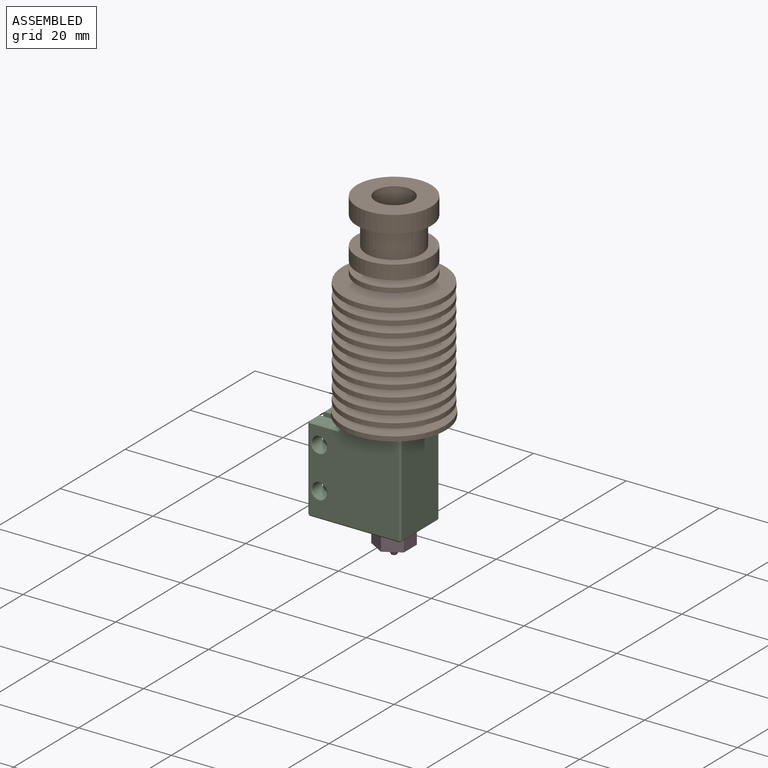
[diagram: assembled view]
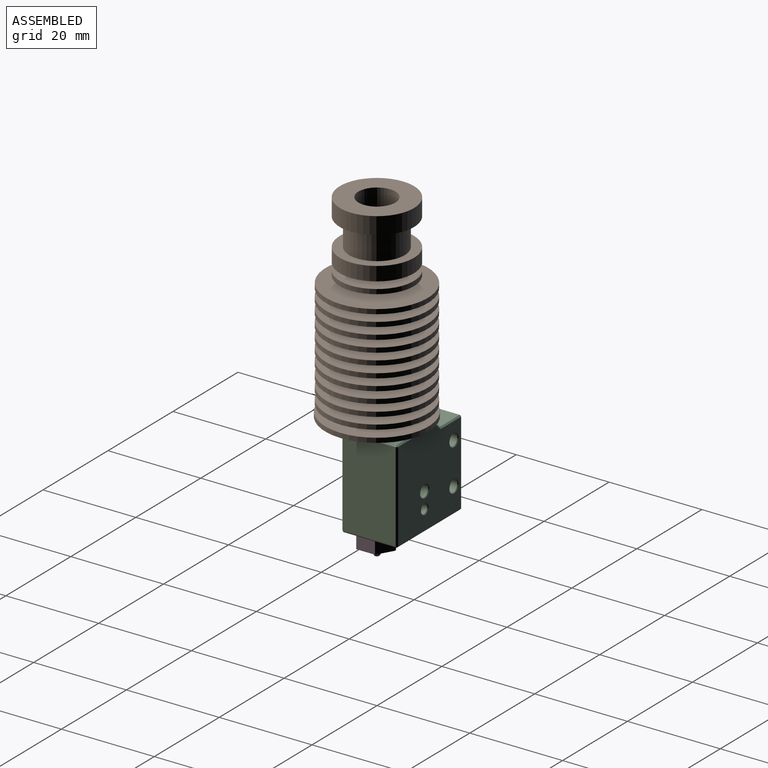
[diagram: assembled view, second angle]
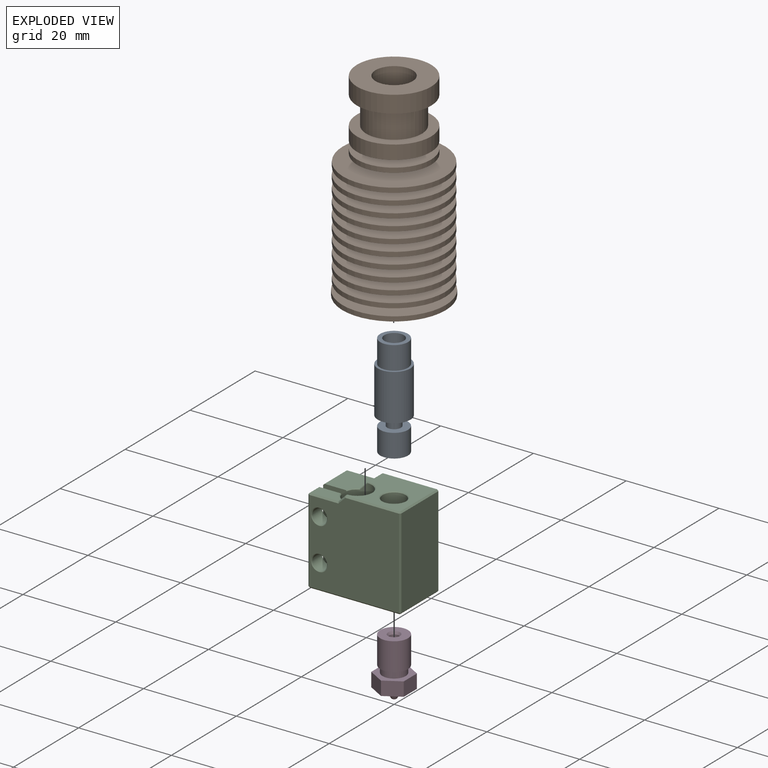
[diagram: exploded view]
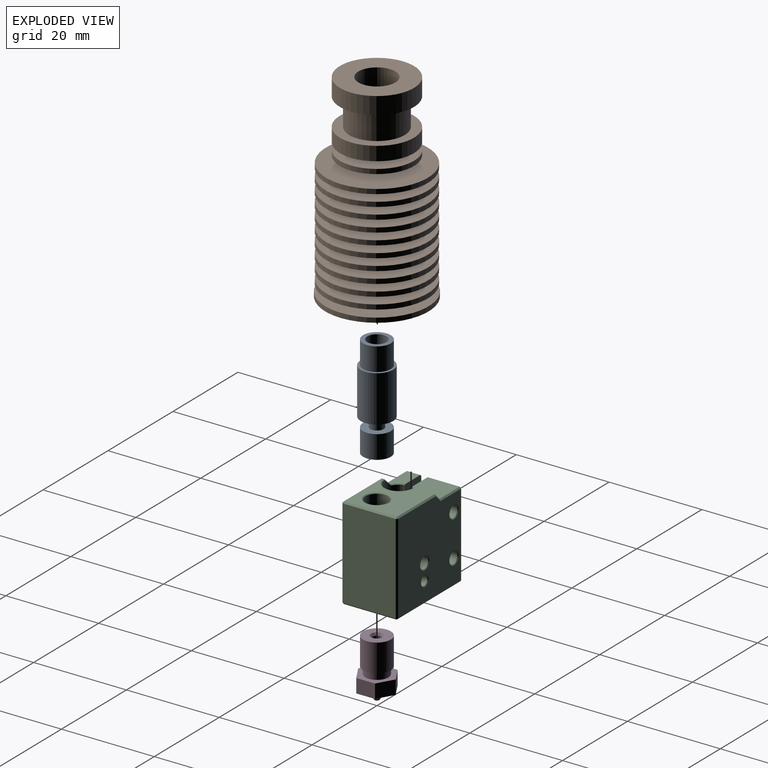
[diagram: exploded view, second angle]
ASSEMBLY  parts=4 mates=3
PART A: 12 faces, bbox 7x7x22.1 mm
  f0: plane 6x6mm, normal (0,0,1), area 14.4mm2, adj f1,f11
  f1: cylinder r=3mm len=6mm, axis (0,0,-1), area 94.2mm2, adj f0,f2
  f2: plane 7x7mm, normal (0,0,1), area 10.2mm2, adj f1,f3
  f3: cylinder r=3.5mm len=10mm, axis (0,0,-1), area 219.9mm2, adj f2,f4
  f4: plane 7x7mm, normal (0,0,-1), area 31.6mm2, adj f3,f5
  f5: cylinder r=1.47mm len=2.95mm, axis (0,0,-1), area 19.5mm2, adj f4,f6
  f6: plane 6x6mm, normal (0,0,1), area 21.4mm2, adj f5,f7
  f7: cylinder r=3mm len=6mm, axis (0,0,-1), area 94.2mm2, adj f6,f8
  f8: plane 6x6mm, normal (0,0,-1), area 25.1mm2, adj f7,f9
  f9: cylinder r=1mm len=17.1mm, axis (0,0,-1), area 107.4mm2, adj f8,f10
  f10: plane 4.2x4.2mm, normal (0,0,1), area 10.7mm2, adj f9,f11
  f11: cylinder r=2.1mm len=5mm, axis (0,0,-1), area 66mm2, adj f0,f10
PART B: 60 faces, bbox 22.3x22.3x42.7 mm
  f0: cylinder r=6.25mm len=12.5mm, axis (0,0,-1), area 58.9mm2, adj f1,f59
  f1: plane 22x22mm, normal (0,0,1), area 257.4mm2, adj f0,f2
  f2: cylinder r=11mm len=22mm, axis (0,0,-1), area 69.1mm2, adj f1,f3
  f3: plane 22x22mm, normal (0,0,-1), area 247.4mm2, adj f2,f4
  f4: cylinder r=6.5mm len=13mm, axis (0,0,-1), area 61.3mm2, adj f3,f5
  f5: plane 22x22mm, normal (0,0,1), area 247.4mm2, adj f4,f6
  f6: cylinder r=11mm len=22mm, axis (0,0,-1), area 69.1mm2, adj f5,f7
  f7: plane 22x22mm, normal (0,0,-1), area 237mm2, adj f6,f8
  f8: cylinder r=6.75mm len=13.5mm, axis (0,0,-1), area 63.6mm2, adj f7,f9
  f9: plane 22x22mm, normal (0,0,1), area 237mm2, adj f8,f10
  f10: cylinder r=11mm len=22mm, axis (0,0,-1), area 69.1mm2, adj f9,f11
  f11: plane 22x22mm, normal (0,0,-1), area 226.2mm2, adj f10,f12
  f12: cylinder r=7mm len=14mm, axis (0,0,-1), area 66mm2, adj f11,f13
  f13: plane 22.3x22.3mm, normal (0,0,1), area 236.6mm2, adj f12,f14
  f14: cylinder r=11.15mm len=22.3mm, axis (0,0,-1), area 70.1mm2, adj f13,f15
  f15: plane 22.3x22.3mm, normal (0,0,-1), area 362.3mm2, adj f14,f16
  f16: cylinder r=3mm len=15.1mm, axis (0,0,-1), area 284.6mm2, adj f15,f17
  f17: plane 6x6mm, normal (0,0,-1), area 14.4mm2, adj f16,f18
  f18: cylinder r=2.1mm len=21.1mm, axis (0,0,-1), area 278.4mm2, adj f17,f19
  f19: plane 8x8mm, normal (0,0,1), area 36.4mm2, adj f18,f20
  f20: cylinder r=4mm len=8mm, axis (0,0,-1), area 163.4mm2, adj f19,f21
  f21: plane 16x16mm, normal (0,0,1), area 150.8mm2, adj f20,f22
  f22: cylinder r=8mm len=16mm, axis (0,0,-1), area 186mm2, adj f21,f23
  f23: plane 16x16mm, normal (0,0,-1), area 88mm2, adj f22,f24
  f24: cylinder r=6mm len=12mm, axis (0,0,-1), area 226.2mm2, adj f23,f25
  f25: plane 16x16mm, normal (0,0,1), area 88mm2, adj f24,f26
  f26: cylinder r=8mm len=16mm, axis (0,0,-1), area 150.8mm2, adj f25,f27
  f27: plane 16x16mm, normal (0,0,-1), area 137.4mm2, adj f26,f28
  f28: cylinder r=4.5mm len=9mm, axis (0,0,-1), area 42.4mm2, adj f27,f29
  f29: plane 16x16mm, normal (0,0,1), area 137.4mm2, adj f28,f30
  f30: cylinder r=8mm len=16mm, axis (0,0,-1), area 50.3mm2, adj f29,f31
  f31: plane 16x16mm, normal (0,0,-1), area 137.4mm2, adj f30,f32
  f32: cylinder r=4.5mm len=9mm, axis (0,0,-1), area 42.4mm2, adj f31,f33
  f33: plane 22x22mm, normal (0,0,1), area 316.5mm2, adj f32,f34
  f34: cylinder r=11mm len=22mm, axis (0,0,-1), area 69.1mm2, adj f33,f35
  f35: plane 22x22mm, normal (0,0,-1), area 309.3mm2, adj f34,f36
  f36: cylinder r=4.75mm len=9.5mm, axis (0,0,-1), area 44.8mm2, adj f35,f37
  f37: plane 22x22mm, normal (0,0,1), area 309.3mm2, adj f36,f38
  f38: cylinder r=11mm len=22mm, axis (0,0,-1), area 69.1mm2, adj f37,f39
  f39: plane 22x22mm, normal (0,0,-1), area 301.6mm2, adj f38,f40
  f40: cylinder r=5mm len=10mm, axis (0,0,-1), area 47.1mm2, adj f39,f41
  f41: plane 22x22mm, normal (0,0,1), area 301.6mm2, adj f40,f42
  f42: cylinder r=11mm len=22mm, axis (0,0,-1), area 69.1mm2, adj f41,f43
  f43: plane 22x22mm, normal (0,0,-1), area 293.5mm2, adj f42,f44
  f44: cylinder r=5.25mm len=10.5mm, axis (0,0,-1), area 49.5mm2, adj f43,f45
  f45: plane 22x22mm, normal (0,0,1), area 293.5mm2, adj f44,f46
  f46: cylinder r=11mm len=22mm, axis (0,0,-1), area 69.1mm2, adj f45,f47
  f47: plane 22x22mm, normal (0,0,-1), area 285.1mm2, adj f46,f48
  f48: cylinder r=5.5mm len=11mm, axis (0,0,-1), area 51.8mm2, adj f47,f49
  f49: plane 22x22mm, normal (0,0,1), area 285.1mm2, adj f48,f50
  f50: cylinder r=11mm len=22mm, axis (0,0,-1), area 69.1mm2, adj f49,f51
  f51: plane 22x22mm, normal (0,0,-1), area 276.3mm2, adj f50,f52
  f52: cylinder r=5.75mm len=11.5mm, axis (0,0,-1), area 54.2mm2, adj f51,f53
  f53: plane 22x22mm, normal (0,0,1), area 276.3mm2, adj f52,f54
  f54: cylinder r=11mm len=22mm, axis (0,0,-1), area 69.1mm2, adj f53,f55
  f55: plane 22x22mm, normal (0,0,-1), area 267mm2, adj f54,f56
  f56: cylinder r=6mm len=12mm, axis (0,0,-1), area 56.5mm2, adj f55,f57
  f57: plane 22x22mm, normal (0,0,1), area 267mm2, adj f56,f58
  f58: cylinder r=11mm len=22mm, axis (0,0,-1), area 69.1mm2, adj f57,f59
  f59: plane 22x22mm, normal (0,0,-1), area 257.4mm2, adj f0,f58
PART C: 65 faces, bbox 20x12x20.1 mm
  f0: plane 17.9x6.9mm, normal (-1,0,0), area 123.5mm2, adj f14,f44,f50,f51
  f1: plane 6.9x6.2mm, normal (0,0,1), area 40.7mm2, adj f2,f14,f27,f50,f59
  f2: plane 4.88x1.51mm, normal (-0.71,0,0.71), area 9.9mm2, adj f1,f6,f27,f28,f29,f62
  f3: plane 17.9x2.9mm, normal (-1,0,0), area 51.9mm2, adj f13,f39,f40,f41
  f4: plane 6.2x2.9mm, normal (0,0,1), area 15.9mm2, adj f5,f13,f31,f41,f46
  f5: plane 1.51x1.51mm, normal (-0.71,0,0.71), area 1.4mm2, adj f4,f6,f29,f30,f31,f49
  f6: plane 11.7x11.4mm, normal (0,0,1), area 95.6mm2, adj f2,f5,f29,f34,f55,f61,f64
  f7: plane 19.4x11.4mm, normal (1,0,0), area 221.2mm2, adj f53,f54,f60,f61
  f8: plane 19.4x11.4mm, normal (0,0,-1), area 160.1mm2, adj f13,f14,f32,f33,f39,f44,f45,f52
  f9: plane 19.4x19.4mm, normal (0,1,0), area 343.1mm2, adj f35,f36,f37,f38,f51,f52,f59,f60
  f10: plane 19.4x19.4mm, normal (0,-1,0), area 346.5mm2, adj f25,f26,f40,f45,f46,f49,f54,f55
  f11: cylinder r=2.48mm len=19.7mm, axis (0,0,-1), area 306.4mm2, adj f33,f34
  f12: cylinder r=3.05mm len=19.7mm, axis (0,0,-1), area 335.9mm2, adj f13,f14,f27,f28,f29,f30,f31,f32
  f13: plane 18.5x5.06mm, normal (0,1,0), area 77.4mm2, adj f3,f4,f8,f12,f17,f18,f31,f32
  f14: plane 18.5x5.06mm, normal (0,-1,0), area 83.6mm2, adj f0,f1,f8,f12,f15,f16,f27,f32
  f15: cylinder r=1.25mm len=7.05mm, axis (0,1,0), area 55.4mm2, adj f14,f37
  f16: cylinder r=1.25mm len=7.05mm, axis (0,1,0), area 55.4mm2, adj f14,f38
  f17: cylinder r=1.6mm len=3.2mm, axis (0,-1,0), area 30.7mm2, adj f13,f26
  f18: cylinder r=1.6mm len=3.2mm, axis (0,-1,0), area 30.7mm2, adj f13,f25
  f19: cylinder r=1mm len=2mm, axis (0,1,0), area 11.6mm2, adj f20,f35
  f20: cone r=1mm half-angle=60deg, axis (0,1,0), area 1.4mm2, adj f19,f22
  f21: cone r=0.78mm half-angle=60deg, axis (0,1,0), area 2.2mm2, adj f22
  f22: cylinder r=0.78mm len=2.27mm, axis (0,1,0), area 11.1mm2, adj f20,f21
  f23: cylinder r=1.25mm len=3.35mm, axis (0,1,0), area 26.3mm2, adj f24,f36
  f24: cone r=1.25mm half-angle=60deg, axis (0,1,0), area 5.7mm2, adj f23
  f25: cone r=1.6mm half-angle=45deg, axis (0,-1,0), area 2.2mm2, adj f10,f18
  f26: cone r=1.6mm half-angle=45deg, axis (0,-1,0), area 2.2mm2, adj f10,f17
  f27: cone r=3.2mm half-angle=45deg, axis (0,0,1), area 0.5mm2, adj f1,f2,f12,f14,f28
  f28: bspline ~1.6x1.6mm, area 0.4mm2, adj f2,f12,f27,f29
  f29: cone r=3.05mm half-angle=45deg, axis (0,0,1), area 2.1mm2, adj f2,f5,f6,f12,f28,f30
  f30: bspline ~1.8x1.8mm, area 0.4mm2, adj f5,f12,f29,f31
  f31: cone r=3.2mm half-angle=45deg, axis (0,0,1), area 0.5mm2, adj f4,f5,f12,f13,f30
  f32: cone r=3.05mm half-angle=45deg, axis (0,0,-1), area 3.8mm2, adj f8,f12,f13,f14
  f33: cone r=2.48mm half-angle=45deg, axis (0,0,-1), area 3.4mm2, adj f8,f11
  f34: cone r=2.48mm half-angle=45deg, axis (0,0,1), area 3.4mm2, adj f6,f11
  f35: cone r=1mm half-angle=45deg, axis (0,1,0), area 1.4mm2, adj f9,f19
  f36: cone r=1.25mm half-angle=45deg, axis (0,1,0), area 1.8mm2, adj f9,f23
  f37: cone r=1.25mm half-angle=45deg, axis (0,1,0), area 1.8mm2, adj f9,f15
  f38: cone r=1.25mm half-angle=45deg, axis (0,1,0), area 1.8mm2, adj f9,f16
  f39: plane 2.9x0.3mm, normal (-0.71,0,-0.71), area 1.2mm2, adj f3,f8,f13,f42
  f40: plane 17.9x0.3mm, normal (-0.71,-0.71,0), area 7.6mm2, adj f3,f10,f42,f43
  f41: plane 2.9x0.3mm, normal (-0.71,0,0.71), area 1.2mm2, adj f3,f4,f13,f43
  f42: plane 0.3x0.3mm, normal (-0.58,-0.58,-0.58), area 0.1mm2, adj f39,f40,f45
  f43: plane 0.3x0.3mm, normal (-0.58,-0.58,0.58), area 0.1mm2, adj f40,f41,f46
  f44: plane 6.9x0.3mm, normal (-0.71,0,-0.71), area 2.9mm2, adj f0,f8,f14,f47
  f45: plane 19.4x0.3mm, normal (0,-0.71,-0.71), area 8.2mm2, adj f8,f10,f42,f48
  f46: plane 6.32x0.3mm, normal (0,-0.71,0.71), area 2.7mm2, adj f4,f10,f43,f49
  f47: plane 0.3x0.3mm, normal (-0.58,0.58,-0.58), area 0.1mm2, adj f44,f51,f52
  f48: plane 0.3x0.3mm, normal (0.58,-0.58,-0.58), area 0.1mm2, adj f45,f53,f54
  f49: plane 1.8x1.62mm, normal (-0.5,-0.71,0.5), area 0.9mm2, adj f5,f10,f46,f55
  f50: plane 6.9x0.3mm, normal (-0.71,0,0.71), area 2.9mm2, adj f0,f1,f14,f56
  f51: plane 17.9x0.3mm, normal (-0.71,0.71,0), area 7.6mm2, adj f0,f9,f47,f56
  f52: plane 19.4x0.3mm, normal (0,0.71,-0.71), area 8.2mm2, adj f8,f9,f47,f57
  f53: plane 11.4x0.3mm, normal (0.71,0,-0.71), area 4.8mm2, adj f7,f8,f48,f57
  f54: plane 19.4x0.3mm, normal (0.71,-0.71,0), area 8.2mm2, adj f7,f10,f48,f58
  f55: plane 11.7x0.3mm, normal (0,-0.71,0.71), area 4.9mm2, adj f6,f10,f49,f58
  f56: plane 0.3x0.3mm, normal (-0.58,0.58,0.58), area 0.1mm2, adj f50,f51,f59
  f57: plane 0.3x0.3mm, normal (0.58,0.58,-0.58), area 0.1mm2, adj f52,f53,f60
  f58: plane 0.3x0.3mm, normal (0.58,-0.58,0.58), area 0.1mm2, adj f54,f55,f61
  f59: plane 6.32x0.3mm, normal (0,0.71,0.71), area 2.7mm2, adj f1,f9,f56,f62
  f60: plane 19.4x0.3mm, normal (0.71,0.71,0), area 8.2mm2, adj f7,f9,f57,f63
  f61: plane 11.4x0.3mm, normal (0.71,0,0.71), area 4.8mm2, adj f6,f7,f58,f63
  f62: plane 1.8x1.62mm, normal (-0.5,0.71,0.5), area 0.9mm2, adj f2,f9,f59,f64
  f63: plane 0.3x0.3mm, normal (0.58,0.58,0.58), area 0.1mm2, adj f60,f61,f64
  f64: plane 11.7x0.3mm, normal (0,0.71,0.71), area 4.9mm2, adj f6,f9,f62,f63
PART D: 19 faces, bbox 7x8.1x12.5 mm
  f0: cone r=1mm half-angle=30deg, axis (0,0,1), area 4.3mm2, adj f1,f11
  f1: plane 6x6mm, normal (0,0,1), area 23mm2, adj f0,f2
  f2: cylinder r=3mm len=6mm, axis (0,0,1), area 113.1mm2, adj f1,f3
  f3: plane 6x6mm, normal (0,0,-1), area 8.6mm2, adj f2,f4
  f4: cylinder r=2.5mm len=5mm, axis (0,0,1), area 23.6mm2, adj f3,f5
  f5: plane 8.08x7mm, normal (0,0,1), area 22.8mm2, adj f4,f12,f13,f14,f15,f16,f17
  f6: plane 8.08x7mm, normal (0,0,-1), area 33.8mm2, adj f7,f12,f13,f14,f15,f16,f17
  f7: cone r=1.65mm half-angle=30deg, axis (0,0,1), area 15.2mm2, adj f6,f18
  f8: plane 0.77x0.77mm, normal (0,0,-1), area 0.3mm2, adj f9,f18
  f9: cylinder r=0.2mm len=0.6mm, axis (0,0,1), area 0.8mm2, adj f8,f10
  f10: cone r=0.2mm half-angle=30deg, axis (0,0,1), area 6mm2, adj f9,f11
  f11: cylinder r=1mm len=9.99mm, axis (0,0,1), area 62.8mm2, adj f0,f10
  f12: plane 3.5x3mm, normal (0.5,0.87,0), area 12.1mm2, adj f5,f6,f13,f15
  f13: plane 3.5x3mm, normal (-0.5,0.87,0), area 12.1mm2, adj f5,f6,f12,f14
  f14: plane 4.04x3mm, normal (-1,0,0), area 12.1mm2, adj f5,f6,f13,f16
  f15: plane 4.04x3mm, normal (1,0,0), area 12.1mm2, adj f5,f6,f12,f17
  f16: plane 3.5x3mm, normal (-0.5,-0.87,0), area 12.1mm2, adj f5,f6,f14,f17
  f17: plane 3.5x3mm, normal (0.5,-0.87,0), area 12.1mm2, adj f5,f6,f15,f16
  f18: torus R=0.38mm, axis (0,0,-1), area 0.6mm2, adj f7,f8
PLACE A at identity
PLACE B at identity
PLACE C t=(-5.5,1.5,-12.1)mm
PLACE D t=(0,0,-7.5)mm
MATE fastened C.f33 <-> A.f1  axis (0,0,1) through (0,0,-2.1)mm
MATE fastened A.f1 <-> B.f0  axis (0,0,-1) through (0,0,0)mm
MATE fastened D.f18 <-> C.f33  axis (0,0,1) through (0,0,-22.1)mm
